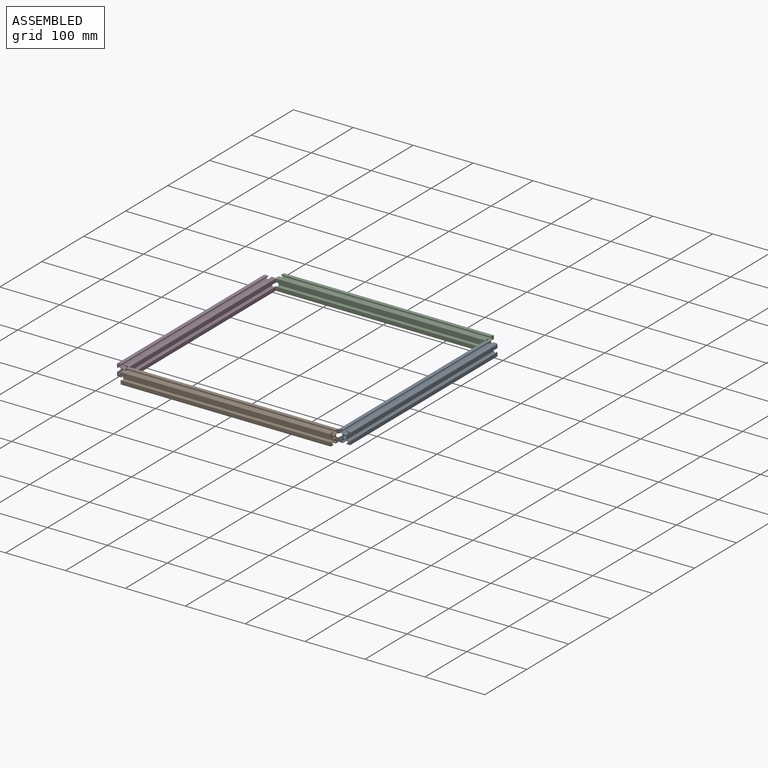
[diagram: assembled view]
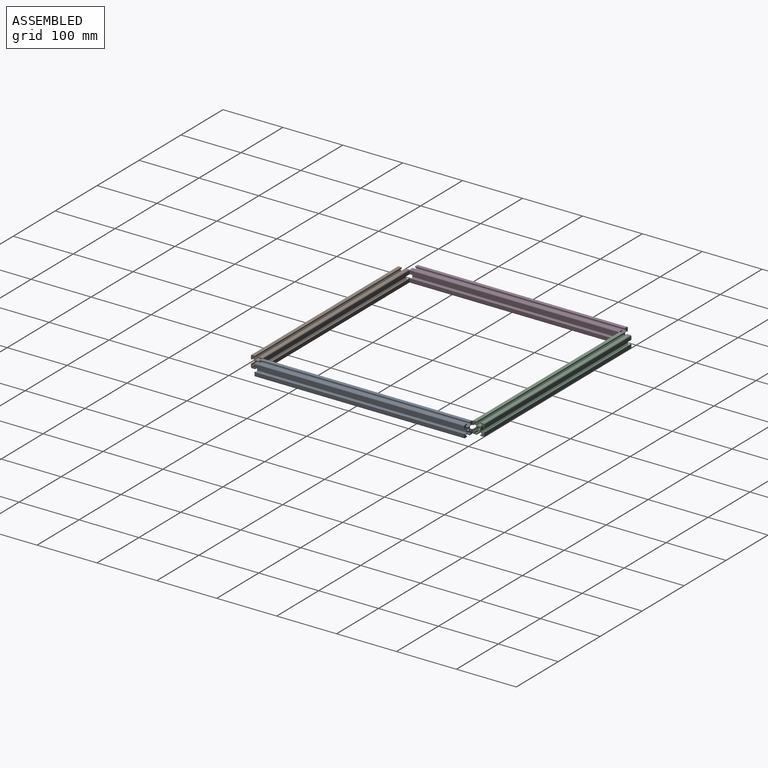
[diagram: assembled view, second angle]
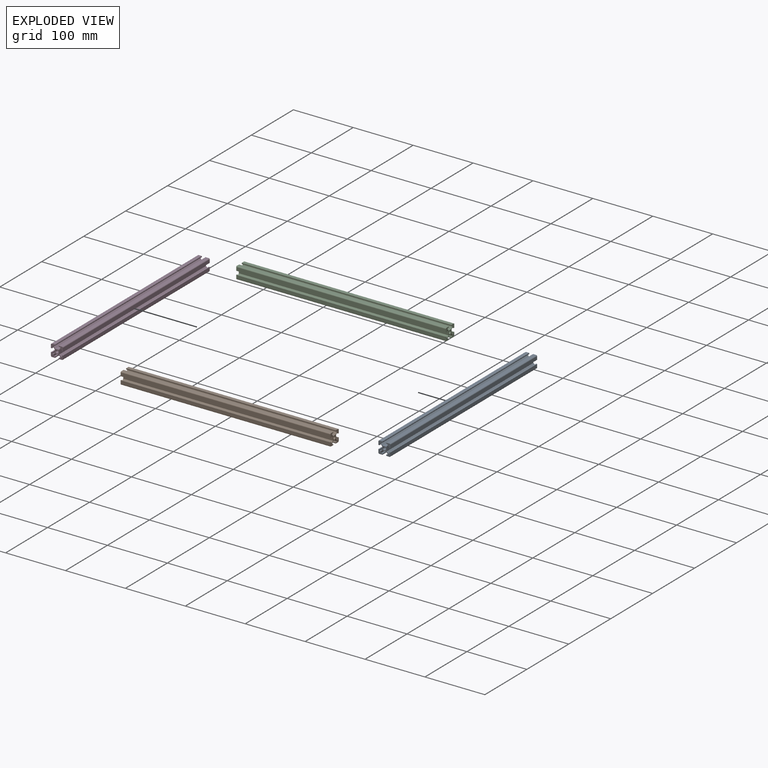
[diagram: exploded view]
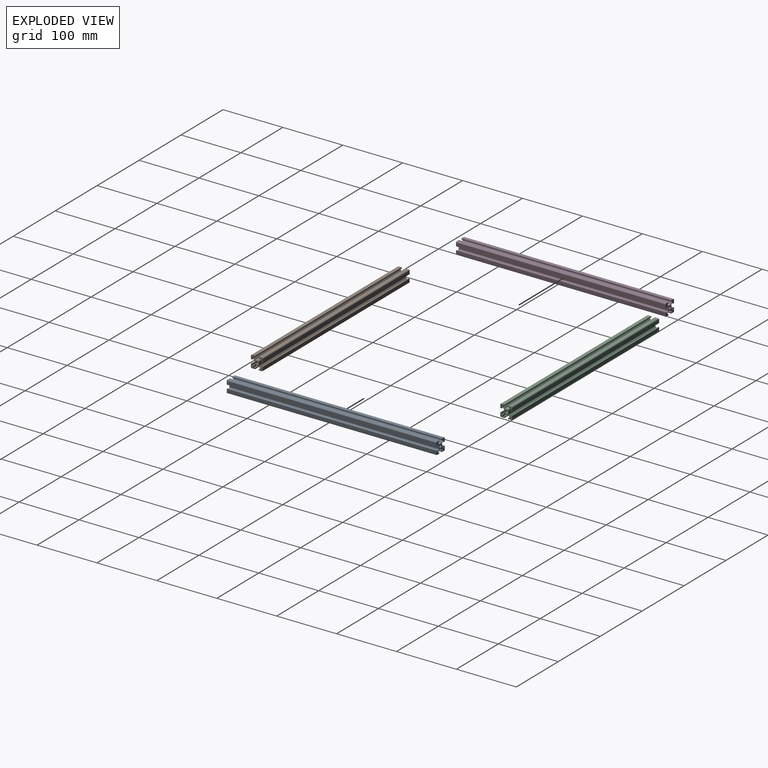
[diagram: exploded view, second angle]
ASSEMBLY  parts=4 mates=3
PART A: 51 faces, bbox 20x350x20 mm
  f0: plane 350x5.39mm, normal (1,0,0), area 1886mm2, adj f1,f48,f49,f50
  f1: plane 350x1.78mm, normal (0,0,1), area 622.3mm2, adj f0,f2,f49,f50
  f2: plane 350x2.35mm, normal (-1,0,0), area 822.3mm2, adj f1,f3,f49,f50
  f3: plane 350x1.78mm, normal (0,0,1), area 622.3mm2, adj f2,f4,f49,f50
  f4: plane 350x2.67mm, normal (0.66,0,0.75), area 1244mm2, adj f3,f5,f49,f50
  f5: plane 350x6.22mm, normal (1,0,0), area 2178.1mm2, adj f4,f6,f49,f50
  f6: plane 350x2.67mm, normal (0.66,0,-0.75), area 1244mm2, adj f5,f7,f49,f50
  f7: plane 350x1.78mm, normal (0,0,-1), area 622.3mm2, adj f6,f8,f49,f50
  f8: plane 350x2.35mm, normal (-1,0,0), area 822.3mm2, adj f7,f9,f49,f50
  f9: plane 350x1.78mm, normal (0,0,-1), area 622.3mm2, adj f8,f10,f49,f50
  f10: plane 350x5.39mm, normal (1,0,0), area 1886mm2, adj f9,f11,f49,f50
  f11: cylinder r=1.5mm len=350mm, axis (0,-1,0), area 824.7mm2, adj f10,f12,f49,f50
  f12: plane 350x5.39mm, normal (0,0,1), area 1886mm2, adj f11,f13,f49,f50
  f13: plane 350x1.78mm, normal (-1,0,0), area 622.3mm2, adj f12,f14,f49,f50
  f14: plane 350x2.35mm, normal (0,0,-1), area 822.3mm2, adj f13,f15,f49,f50
  f15: plane 350x1.78mm, normal (-1,0,0), area 622.3mm2, adj f14,f16,f49,f50
  f16: plane 350x2.67mm, normal (-0.75,0,0.66), area 1244mm2, adj f15,f17,f49,f50
  f17: plane 350x6.22mm, normal (0,0,1), area 2178.1mm2, adj f16,f18,f49,f50
  f18: plane 350x2.67mm, normal (0.75,0,0.66), area 1244mm2, adj f17,f19,f49,f50
  f19: plane 350x1.78mm, normal (1,0,0), area 622.3mm2, adj f18,f20,f49,f50
  f20: plane 350x2.35mm, normal (0,0,-1), area 822.3mm2, adj f19,f21,f49,f50
  f21: plane 350x1.78mm, normal (1,0,0), area 622.3mm2, adj f20,f22,f49,f50
  f22: plane 350x5.39mm, normal (0,0,1), area 1886mm2, adj f21,f23,f49,f50
  f23: cylinder r=1.5mm len=350mm, axis (0,-1,0), area 824.7mm2, adj f22,f24,f49,f50
  f24: plane 350x5.39mm, normal (-1,0,0), area 1886mm2, adj f23,f25,f49,f50
  f25: plane 350x1.78mm, normal (0,0,-1), area 622.3mm2, adj f24,f26,f49,f50
  f26: plane 350x2.35mm, normal (1,0,0), area 822.3mm2, adj f25,f27,f49,f50
  f27: plane 350x1.78mm, normal (0,0,-1), area 622.3mm2, adj f26,f28,f49,f50
  f28: plane 350x2.67mm, normal (-0.66,0,-0.75), area 1244mm2, adj f27,f29,f49,f50
  f29: plane 350x6.22mm, normal (-1,0,0), area 2178.1mm2, adj f28,f30,f49,f50
  f30: plane 350x2.67mm, normal (-0.66,0,0.75), area 1244mm2, adj f29,f31,f49,f50
  f31: plane 350x1.78mm, normal (0,0,1), area 622.3mm2, adj f30,f32,f49,f50
  f32: plane 350x2.35mm, normal (1,0,0), area 822.3mm2, adj f31,f33,f49,f50
  f33: plane 350x1.78mm, normal (0,0,1), area 622.3mm2, adj f32,f34,f49,f50
  f34: plane 350x5.39mm, normal (-1,0,0), area 1886mm2, adj f33,f35,f49,f50
  f35: cylinder r=1.5mm len=350mm, axis (0,-1,0), area 824.7mm2, adj f34,f36,f49,f50
  f36: plane 350x5.39mm, normal (0,0,-1), area 1886mm2, adj f35,f37,f49,f50
  f37: plane 350x1.78mm, normal (1,0,0), area 622.3mm2, adj f36,f38,f49,f50
  f38: plane 350x2.35mm, normal (0,0,1), area 822.3mm2, adj f37,f39,f49,f50
  f39: plane 350x1.78mm, normal (1,0,0), area 622.3mm2, adj f38,f40,f49,f50
  f40: plane 350x2.67mm, normal (0.75,0,-0.66), area 1244mm2, adj f39,f41,f49,f50
  f41: plane 350x6.22mm, normal (0,0,-1), area 2178.1mm2, adj f40,f42,f49,f50
  f42: plane 350x2.67mm, normal (-0.75,0,-0.66), area 1244mm2, adj f41,f43,f49,f50
  f43: plane 350x1.78mm, normal (-1,0,0), area 622.3mm2, adj f42,f44,f49,f50
  f44: plane 350x2.35mm, normal (0,0,1), area 822.3mm2, adj f43,f45,f49,f50
  f45: plane 350x1.78mm, normal (-1,0,0), area 622.3mm2, adj f44,f46,f49,f50
  f46: plane 350x5.39mm, normal (0,0,-1), area 1886mm2, adj f45,f48,f49,f50
  f47: cylinder r=2.5mm len=350mm, axis (0,-1,0), area 5497.8mm2, adj f49,f50
  f48: cylinder r=1.5mm len=350mm, axis (0,-1,0), area 824.7mm2, adj f0,f46,f49,f50
  f49: plane 20x20mm, normal (0,-1,0), area 165mm2, adj f0,f1,f2,f3,f4,f5,f6,f7
  f50: plane 20x20mm, normal (0,1,0), area 165mm2, adj f0,f1,f2,f3,f4,f5,f6,f7
PART B: same geometry as A
PART C: same geometry as A
PART D: same geometry as A
PLACE A rot(axis=(0,1,0),90deg) t=(387.3,115.96,-259.44)mm
PLACE B rot(axis=(0,0,-1),90deg) t=(402.3,-269.04,-259.44)mm
PLACE C rot(axis=(0,0,1),90deg) t=(2.3,100.96,-259.44)mm
PLACE D t=(17.3,115.96,-259.44)mm
MATE fastened C.f24 <-> A.f50  axis (0,-1,0) through (377.3,90.96,-256.33)mm
MATE fastened C.f50 <-> D.f10  axis (-1,0,0) through (27.3,90.96,-256.33)mm
MATE fastened D.f10 <-> B.f49  axis (1,0,0) through (27.3,-259.04,-256.33)mm
